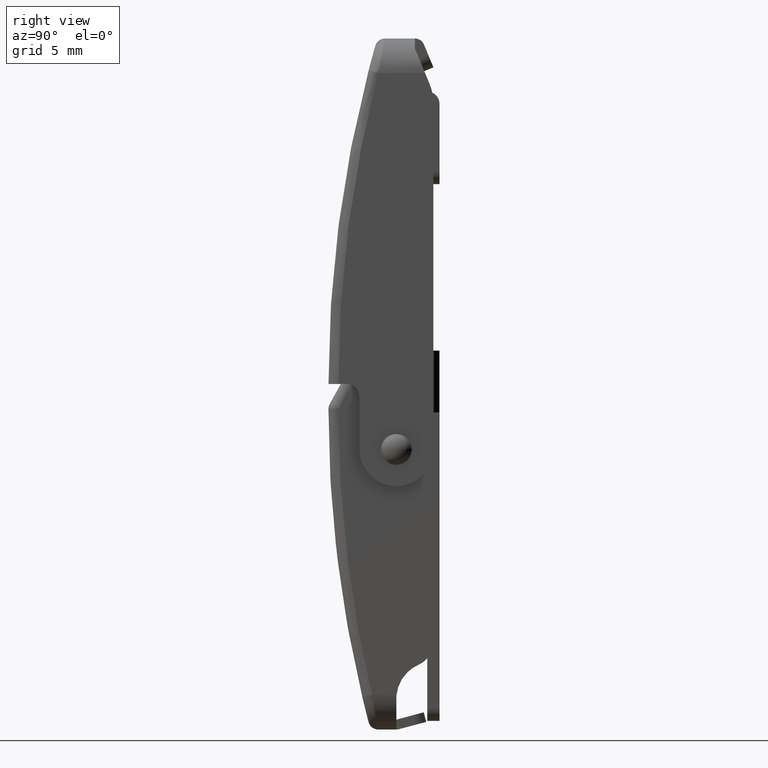
[diagram: clean part render]
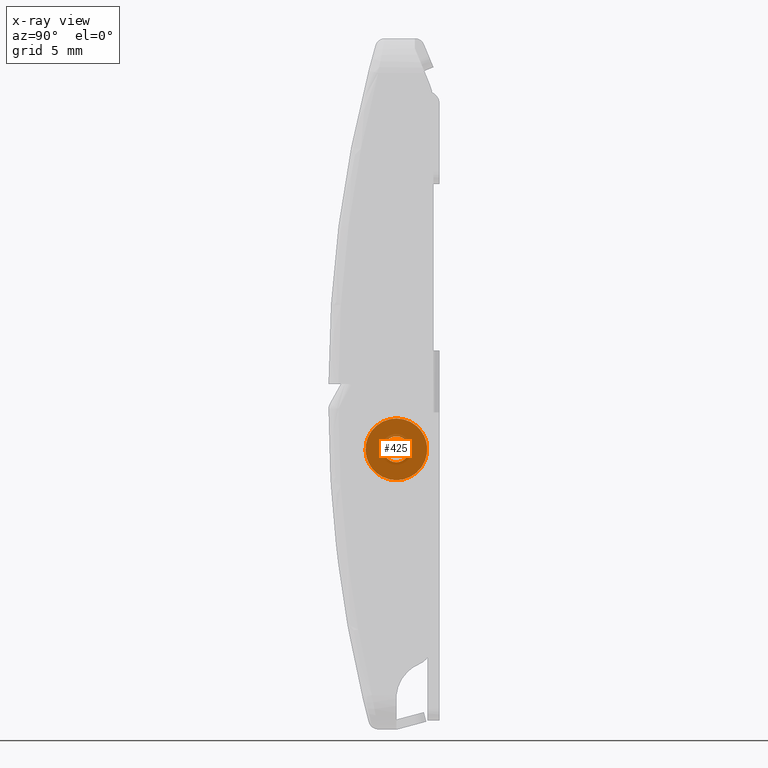
[diagram: x-ray — body ghosted, one internal face saturated and labeled with its STEP entity id]
A machine part, right view, then the same camera in x-ray: the body is ghosted and one INTERNAL B-rep face — a face not visible from any outside direction — is saturated and labeled: STEP entity #425.
In plain terms, the highlighted face is a freeform B-spline surface patch.
Its self-contained STEP definition (entity closure, byte-faithful):
#62=CARTESIAN_POINT('',(6.500000000000000,-3.499999999998890,6.499999999999799));
#63=VERTEX_POINT('',#62);
#64=CARTESIAN_POINT('',(6.500000000000000,-5.992293334321493,4.196147739449233));
#65=VERTEX_POINT('',#64);
#66=CARTESIAN_POINT('',(6.500000000000000,-3.499999999998890,6.499999999999799));
#67=CARTESIAN_POINT('',(6.500000000000000,-5.810976228902911,6.499999999999801));
#68=CARTESIAN_POINT('',(6.500000000000000,-5.992293334321493,4.196147739449233));
#76=(BOUNDED_CURVE()B_SPLINE_CURVE(2,(#66,#67,#68),.UNSPECIFIED.,.F.,.U.)B_SPLINE_CURVE_WITH_KNOTS((3,3),(0.0,0.236331300614908),.UNSPECIFIED.)CURVE()GEOMETRIC_REPRESENTATION_ITEM()RATIONAL_B_SPLINE_CURVE((1.0,0.723120658626119,0.969723356134546))REPRESENTATION_ITEM(''));
#77=EDGE_CURVE('',#63,#65,#76,.T.);
#118=CARTESIAN_POINT('',(6.500000000000000,-1.007706665676288,3.803852260550366));
#119=VERTEX_POINT('',#118);
#125=CARTESIAN_POINT('',(6.500000000000000,-1.007706665676288,3.803852260550366));
#126=CARTESIAN_POINT('',(6.500000000000001,-0.999999999998890,3.901774732350203));
#127=CARTESIAN_POINT('',(6.500000000000000,-0.999999999998890,3.999999999999800));
#128=CARTESIAN_POINT('',(6.500000000000001,-0.999999999998890,6.499999999999801));
#129=CARTESIAN_POINT('',(6.500000000000000,-3.499999999998890,6.499999999999799));
#137=(BOUNDED_CURVE()B_SPLINE_CURVE(2,(#125,#126,#127,#128,#129),.UNSPECIFIED.,.F.,.U.)B_SPLINE_CURVE_WITH_KNOTS((3,2,3),(0.736331300614908,0.750000000000000,1.0),.UNSPECIFIED.)CURVE()GEOMETRIC_REPRESENTATION_ITEM()RATIONAL_B_SPLINE_CURVE((0.969723356134546,0.983986122560428,1.0,0.707106781186548,1.0))REPRESENTATION_ITEM(''));
#138=EDGE_CURVE('',#119,#63,#137,.T.);
#161=CARTESIAN_POINT('',(6.500000000000000,-3.499999999998890,1.499999999999800));
#162=VERTEX_POINT('',#161);
#163=CARTESIAN_POINT('',(6.500000000000000,-5.992293334321493,4.196147739449233));
#164=CARTESIAN_POINT('',(6.500000000000000,-5.999999999998891,4.098225267649397));
#165=CARTESIAN_POINT('',(6.500000000000000,-5.999999999998890,3.999999999999800));
#166=CARTESIAN_POINT('',(6.500000000000001,-5.999999999998892,1.499999999999800));
#167=CARTESIAN_POINT('',(6.500000000000000,-3.499999999998890,1.499999999999800));
#175=(BOUNDED_CURVE()B_SPLINE_CURVE(2,(#163,#164,#165,#166,#167),.UNSPECIFIED.,.F.,.U.)B_SPLINE_CURVE_WITH_KNOTS((3,2,3),(0.236331300614908,0.250000000000000,0.500000000000000),.UNSPECIFIED.)CURVE()GEOMETRIC_REPRESENTATION_ITEM()RATIONAL_B_SPLINE_CURVE((0.969723356134546,0.983986122560428,1.0,0.707106781186548,1.0))REPRESENTATION_ITEM(''));
#176=EDGE_CURVE('',#65,#162,#175,.T.);
#178=CARTESIAN_POINT('',(6.500000000000000,-3.499999999998890,1.499999999999800));
#179=CARTESIAN_POINT('',(6.500000000000000,-1.189023771094856,1.499999999999799));
#180=CARTESIAN_POINT('',(6.500000000000000,-1.007706665676288,3.803852260550366));
#188=(BOUNDED_CURVE()B_SPLINE_CURVE(2,(#178,#179,#180),.UNSPECIFIED.,.F.,.U.)B_SPLINE_CURVE_WITH_KNOTS((3,3),(0.500000000000000,0.736331300614909),.UNSPECIFIED.)CURVE()GEOMETRIC_REPRESENTATION_ITEM()RATIONAL_B_SPLINE_CURVE((1.0,0.723120658626118,0.969723356134548))REPRESENTATION_ITEM(''));
#189=EDGE_CURVE('',#162,#119,#188,.T.);
#244=CARTESIAN_POINT('',(6.500000000000000,-3.499999999998890,5.049999999999799));
#245=VERTEX_POINT('',#244);
#246=CARTESIAN_POINT('',(6.500000000000000,-4.546763200417955,4.082382050523185));
#247=VERTEX_POINT('',#246);
#248=CARTESIAN_POINT('',(6.500000000000000,-3.499999999998890,5.049999999999799));
#249=CARTESIAN_POINT('',(6.500000000000000,-4.470610016222991,5.049999999999800));
#250=CARTESIAN_POINT('',(6.500000000000000,-4.546763200417955,4.082382050523185));
#258=(BOUNDED_CURVE()B_SPLINE_CURVE(2,(#248,#249,#250),.UNSPECIFIED.,.F.,.U.)B_SPLINE_CURVE_WITH_KNOTS((3,3),(0.0,0.236331300629771),.UNSPECIFIED.)CURVE()GEOMETRIC_REPRESENTATION_ITEM()RATIONAL_B_SPLINE_CURVE((1.0,0.723120658608707,0.969723356165563))REPRESENTATION_ITEM(''));
#259=EDGE_CURVE('',#245,#247,#258,.T.);
#261=CARTESIAN_POINT('',(6.500000000000000,-2.453236799579826,3.917617949476415));
#262=VERTEX_POINT('',#261);
#263=CARTESIAN_POINT('',(6.500000000000000,-2.453236799579826,3.917617949476414));
#264=CARTESIAN_POINT('',(6.500000000000000,-2.449999999998890,3.958745387632558));
#265=CARTESIAN_POINT('',(6.500000000000000,-2.449999999998890,3.999999999999800));
#266=CARTESIAN_POINT('',(6.500000000000001,-2.449999999998890,5.049999999999799));
#267=CARTESIAN_POINT('',(6.500000000000000,-3.499999999998890,5.049999999999799));
#275=(BOUNDED_CURVE()B_SPLINE_CURVE(2,(#263,#264,#265,#266,#267),.UNSPECIFIED.,.F.,.U.)B_SPLINE_CURVE_WITH_KNOTS((3,2,3),(0.736331300629771,0.750000000000000,1.0),.UNSPECIFIED.)CURVE()GEOMETRIC_REPRESENTATION_ITEM()RATIONAL_B_SPLINE_CURVE((0.969723356165563,0.983986122577841,1.0,0.707106781186548,1.0))REPRESENTATION_ITEM(''));
#276=EDGE_CURVE('',#262,#245,#275,.T.);
#343=CARTESIAN_POINT('',(6.500000000000000,-3.499999999998890,2.949999999999800));
#344=VERTEX_POINT('',#343);
#345=CARTESIAN_POINT('',(6.500000000000000,-4.546763200417955,4.082382050523185));
#346=CARTESIAN_POINT('',(6.500000000000000,-4.549999999998890,4.041254612367042));
#347=CARTESIAN_POINT('',(6.500000000000000,-4.549999999998890,3.999999999999800));
#348=CARTESIAN_POINT('',(6.500000000000001,-4.549999999998889,2.949999999999800));
#349=CARTESIAN_POINT('',(6.500000000000000,-3.499999999998890,2.949999999999800));
#357=(BOUNDED_CURVE()B_SPLINE_CURVE(2,(#345,#346,#347,#348,#349),.UNSPECIFIED.,.F.,.U.)B_SPLINE_CURVE_WITH_KNOTS((3,2,3),(0.236331300629771,0.250000000000000,0.500000000000000),.UNSPECIFIED.)CURVE()GEOMETRIC_REPRESENTATION_ITEM()RATIONAL_B_SPLINE_CURVE((0.969723356165563,0.983986122577841,1.0,0.707106781186548,1.0))REPRESENTATION_ITEM(''));
#358=EDGE_CURVE('',#247,#344,#357,.T.);
#392=CARTESIAN_POINT('',(6.500000000000000,-3.499999999998890,2.949999999999800));
#393=CARTESIAN_POINT('',(6.500000000000002,-2.529389983774790,2.949999999999800));
#394=CARTESIAN_POINT('',(6.500000000000000,-2.453236799579826,3.917617949476415));
#402=(BOUNDED_CURVE()B_SPLINE_CURVE(2,(#392,#393,#394),.UNSPECIFIED.,.F.,.U.)B_SPLINE_CURVE_WITH_KNOTS((3,3),(0.500000000000000,0.736331300629771),.UNSPECIFIED.)CURVE()GEOMETRIC_REPRESENTATION_ITEM()RATIONAL_B_SPLINE_CURVE((1.0,0.723120658608707,0.969723356165563))REPRESENTATION_ITEM(''));
#403=EDGE_CURVE('',#344,#262,#402,.T.);
#408=CARTESIAN_POINT('',(6.500000000000000,-6.248986881815911,6.749749990308829));
#409=CARTESIAN_POINT('',(6.500000000000000,-0.751012984071418,6.749749990308829));
#410=CARTESIAN_POINT('',(6.500000000000000,-6.248986881815911,1.250249875580319));
#411=CARTESIAN_POINT('',(6.500000000000000,-0.751012984071418,1.250249875580319));
#412=B_SPLINE_SURFACE_WITH_KNOTS('',1,1,((#408,#410),(#409,#411)),.UNSPECIFIED.,.F.,.F.,.U.,(2,2),(2,2),(0.0,5.497973897744494),(0.0,5.499500114728511),.UNSPECIFIED.);
#413=ORIENTED_EDGE('',*,*,#138,.F.);
#414=ORIENTED_EDGE('',*,*,#189,.F.);
#415=ORIENTED_EDGE('',*,*,#176,.F.);
#416=ORIENTED_EDGE('',*,*,#77,.F.);
#417=EDGE_LOOP('',(#413,#414,#415,#416));
#418=FACE_OUTER_BOUND('',#417,.T.);
#419=ORIENTED_EDGE('',*,*,#403,.T.);
#420=ORIENTED_EDGE('',*,*,#276,.T.);
#421=ORIENTED_EDGE('',*,*,#259,.T.);
#422=ORIENTED_EDGE('',*,*,#358,.T.);
#423=EDGE_LOOP('',(#419,#420,#421,#422));
#424=FACE_BOUND('',#423,.T.);
#425=ADVANCED_FACE('',(#418,#424),#412,.T.);